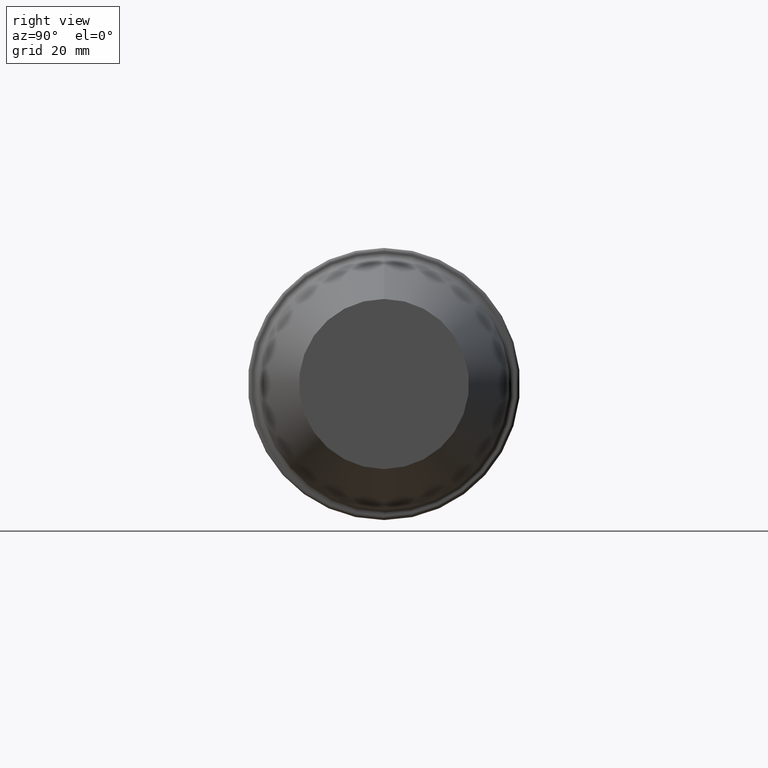
[diagram: clean part render]
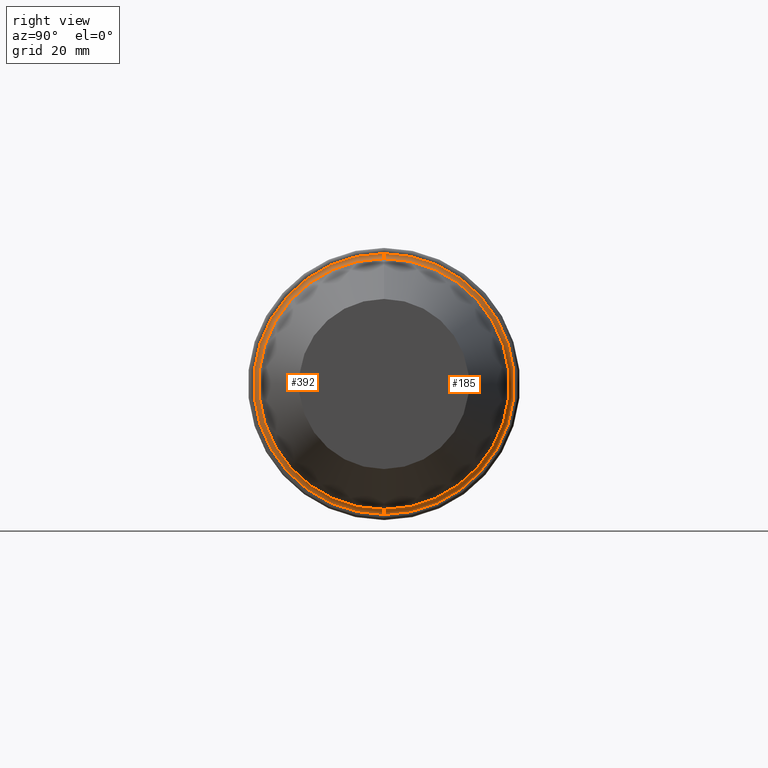
[diagram: same view with one multi-face feature highlighted, each face labeled with its STEP entity id]
A machine part, right view. The highlighted faces form ONE feature: a constant-radius fillet chain: 2 tangent blend faces with common blend radius 1.5 mm. The faces share edges in the B-rep.
Their STEP definitions:
[1] entity #185 (Torus):
#3 = CARTESIAN_POINT ( 'NONE',  ( 29.99999996940000102, 0.000000000000000000, 38.33833553020095763 ) ) ;
#24 = CARTESIAN_POINT ( 'NONE',  ( 29.99999996940000102, 4.695091989169785401E-15, -38.33833553020095763 ) ) ;
#26 = DIRECTION ( 'NONE',  ( 0.000000000000000000, 1.000000000000000000, 1.224646799147351975E-16 ) ) ;
#28 = CARTESIAN_POINT ( 'NONE',  ( 29.99999996940000102, 0.000000000000000000, 0.000000000000000000 ) ) ;
#31 = FACE_OUTER_BOUND ( 'NONE', #299, .T. ) ;
#41 = EDGE_CURVE ( 'NONE', #423, #354, #523, .T. ) ;
#92 = CARTESIAN_POINT ( 'NONE',  ( 31.32968007804372235, 0.000000000000000000, 0.000000000000000000 ) ) ;
#118 = CARTESIAN_POINT ( 'NONE',  ( 31.49999996787000001, 0.000000000000000000, 0.000000000000000000 ) ) ;
#123 = CARTESIAN_POINT ( 'NONE',  ( 31.32968007804372235, 0.000000000000000000, 36.84803652241500060 ) ) ;
#130 = EDGE_CURVE ( 'NONE', #264, #404, #499, .T. ) ;
#142 = CIRCLE ( 'NONE', #216, 38.33833553089489499 ) ;
#163 = ORIENTED_EDGE ( 'NONE', *, *, #509, .F. ) ;
#179 = ORIENTED_EDGE ( 'NONE', *, *, #331, .T. ) ;
#185 = ADVANCED_FACE ( 'NONE', ( #31 ), #474, .F. ) ;
#216 = AXIS2_PLACEMENT_3D ( 'NONE', #28, #481, #446 ) ;
#219 = DIRECTION ( 'NONE',  ( 0.000000000000000000, -1.000000000000000000, 0.000000000000000000 ) ) ;
#221 = DIRECTION ( 'NONE',  ( 0.000000000000000000, 0.000000000000000000, -1.000000000000000000 ) ) ;
#233 = DIRECTION ( 'NONE',  ( -1.000000000000000000, 0.000000000000000000, 0.000000000000000000 ) ) ;
#260 = CARTESIAN_POINT ( 'NONE',  ( 31.49999996787000001, 0.000000000000000000, 38.33833552950702028 ) ) ;
#264 = VERTEX_POINT ( 'NONE', #24 ) ;
#272 = DIRECTION ( 'NONE',  ( 0.000000000000000000, -1.224646799147350249E-16, 1.000000000000000000 ) ) ;
#291 = ORIENTED_EDGE ( 'NONE', *, *, #41, .T. ) ;
#299 = EDGE_LOOP ( 'NONE', ( #478, #163, #291, #179 ) ) ;
#317 = AXIS2_PLACEMENT_3D ( 'NONE', #260, #219, #221 ) ;
#331 = EDGE_CURVE ( 'NONE', #354, #404, #475, .T. ) ;
#332 = DIRECTION ( 'NONE',  ( 0.000000000000000000, 0.000000000000000000, 1.000000000000000000 ) ) ;
#337 = AXIS2_PLACEMENT_3D ( 'NONE', #507, #26, #272 ) ;
#354 = VERTEX_POINT ( 'NONE', #123 ) ;
#404 = VERTEX_POINT ( 'NONE', #422 ) ;
#410 = DIRECTION ( 'NONE',  ( 0.000000000000000000, 0.000000000000000000, 1.000000000000000000 ) ) ;
#422 = CARTESIAN_POINT ( 'NONE',  ( 31.32968007804372235, 4.512582998204022373E-15, -36.84803652241500060 ) ) ;
#423 = VERTEX_POINT ( 'NONE', #3 ) ;
#446 = DIRECTION ( 'NONE',  ( 0.000000000000000000, 0.000000000000000000, 1.000000000000000000 ) ) ;
#451 = AXIS2_PLACEMENT_3D ( 'NONE', #118, #233, #410 ) ;
#459 = DIRECTION ( 'NONE',  ( -1.000000000000000000, 0.000000000000000000, 0.000000000000000000 ) ) ;
#474 = TOROIDAL_SURFACE ( 'NONE', #451, 38.33833552950702028, 1.499999998469999873 ) ;
#475 = CIRCLE ( 'NONE', #500, 36.84803652241500060 ) ;
#478 = ORIENTED_EDGE ( 'NONE', *, *, #130, .F. ) ;
#481 = DIRECTION ( 'NONE',  ( -1.000000000000000000, 0.000000000000000000, 0.000000000000000000 ) ) ;
#499 = CIRCLE ( 'NONE', #337, 1.499999998470002982 ) ;
#500 = AXIS2_PLACEMENT_3D ( 'NONE', #92, #459, #332 ) ;
#507 = CARTESIAN_POINT ( 'NONE',  ( 31.49999996787000001, 4.695091989084801416E-15, -38.33833552950702028 ) ) ;
#509 = EDGE_CURVE ( 'NONE', #423, #264, #142, .T. ) ;
#523 = CIRCLE ( 'NONE', #317, 1.499999998470002982 ) ;
[2] entity #392 (Torus):
#3 = CARTESIAN_POINT ( 'NONE',  ( 29.99999996940000102, 0.000000000000000000, 38.33833553020095763 ) ) ;
#24 = CARTESIAN_POINT ( 'NONE',  ( 29.99999996940000102, 4.695091989169785401E-15, -38.33833553020095763 ) ) ;
#26 = DIRECTION ( 'NONE',  ( 0.000000000000000000, 1.000000000000000000, 1.224646799147351975E-16 ) ) ;
#40 = CIRCLE ( 'NONE', #490, 38.33833553089489499 ) ;
#41 = EDGE_CURVE ( 'NONE', #423, #354, #523, .T. ) ;
#50 = DIRECTION ( 'NONE',  ( 0.000000000000000000, 0.000000000000000000, 1.000000000000000000 ) ) ;
#53 = ORIENTED_EDGE ( 'NONE', *, *, #430, .T. ) ;
#66 = ORIENTED_EDGE ( 'NONE', *, *, #130, .T. ) ;
#77 = CARTESIAN_POINT ( 'NONE',  ( 31.32968007804372235, 0.000000000000000000, 0.000000000000000000 ) ) ;
#87 = CARTESIAN_POINT ( 'NONE',  ( 31.49999996787000001, 0.000000000000000000, 0.000000000000000000 ) ) ;
#90 = EDGE_CURVE ( 'NONE', #264, #423, #40, .T. ) ;
#104 = DIRECTION ( 'NONE',  ( 0.000000000000000000, 0.000000000000000000, 1.000000000000000000 ) ) ;
#123 = CARTESIAN_POINT ( 'NONE',  ( 31.32968007804372235, 0.000000000000000000, 36.84803652241500060 ) ) ;
#130 = EDGE_CURVE ( 'NONE', #264, #404, #499, .T. ) ;
#132 = CIRCLE ( 'NONE', #283, 36.84803652241500060 ) ;
#174 = ORIENTED_EDGE ( 'NONE', *, *, #41, .F. ) ;
#183 = DIRECTION ( 'NONE',  ( -1.000000000000000000, 0.000000000000000000, 0.000000000000000000 ) ) ;
#204 = DIRECTION ( 'NONE',  ( -1.000000000000000000, 0.000000000000000000, 0.000000000000000000 ) ) ;
#219 = DIRECTION ( 'NONE',  ( 0.000000000000000000, -1.000000000000000000, 0.000000000000000000 ) ) ;
#221 = DIRECTION ( 'NONE',  ( 0.000000000000000000, 0.000000000000000000, -1.000000000000000000 ) ) ;
#254 = DIRECTION ( 'NONE',  ( 0.000000000000000000, 0.000000000000000000, 1.000000000000000000 ) ) ;
#260 = CARTESIAN_POINT ( 'NONE',  ( 31.49999996787000001, 0.000000000000000000, 38.33833552950702028 ) ) ;
#264 = VERTEX_POINT ( 'NONE', #24 ) ;
#272 = DIRECTION ( 'NONE',  ( 0.000000000000000000, -1.224646799147350249E-16, 1.000000000000000000 ) ) ;
#283 = AXIS2_PLACEMENT_3D ( 'NONE', #77, #204, #50 ) ;
#317 = AXIS2_PLACEMENT_3D ( 'NONE', #260, #219, #221 ) ;
#323 = ORIENTED_EDGE ( 'NONE', *, *, #90, .F. ) ;
#337 = AXIS2_PLACEMENT_3D ( 'NONE', #507, #26, #272 ) ;
#338 = AXIS2_PLACEMENT_3D ( 'NONE', #87, #456, #254 ) ;
#354 = VERTEX_POINT ( 'NONE', #123 ) ;
#355 = EDGE_LOOP ( 'NONE', ( #323, #66, #53, #174 ) ) ;
#363 = TOROIDAL_SURFACE ( 'NONE', #338, 38.33833552950702028, 1.499999998469999873 ) ;
#392 = ADVANCED_FACE ( 'NONE', ( #495 ), #363, .F. ) ;
#404 = VERTEX_POINT ( 'NONE', #422 ) ;
#422 = CARTESIAN_POINT ( 'NONE',  ( 31.32968007804372235, 4.512582998204022373E-15, -36.84803652241500060 ) ) ;
#423 = VERTEX_POINT ( 'NONE', #3 ) ;
#430 = EDGE_CURVE ( 'NONE', #404, #354, #132, .T. ) ;
#456 = DIRECTION ( 'NONE',  ( -1.000000000000000000, 0.000000000000000000, 0.000000000000000000 ) ) ;
#476 = CARTESIAN_POINT ( 'NONE',  ( 29.99999996940000102, 0.000000000000000000, 0.000000000000000000 ) ) ;
#490 = AXIS2_PLACEMENT_3D ( 'NONE', #476, #183, #104 ) ;
#495 = FACE_OUTER_BOUND ( 'NONE', #355, .T. ) ;
#499 = CIRCLE ( 'NONE', #337, 1.499999998470002982 ) ;
#507 = CARTESIAN_POINT ( 'NONE',  ( 31.49999996787000001, 4.695091989084801416E-15, -38.33833552950702028 ) ) ;
#523 = CIRCLE ( 'NONE', #317, 1.499999998470002982 ) ;